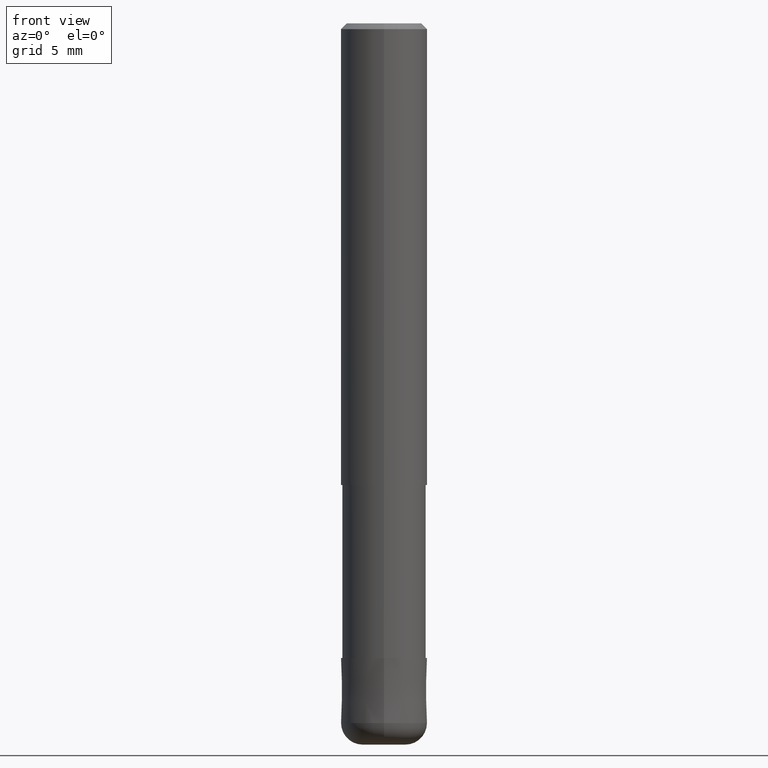
[diagram: clean part render]
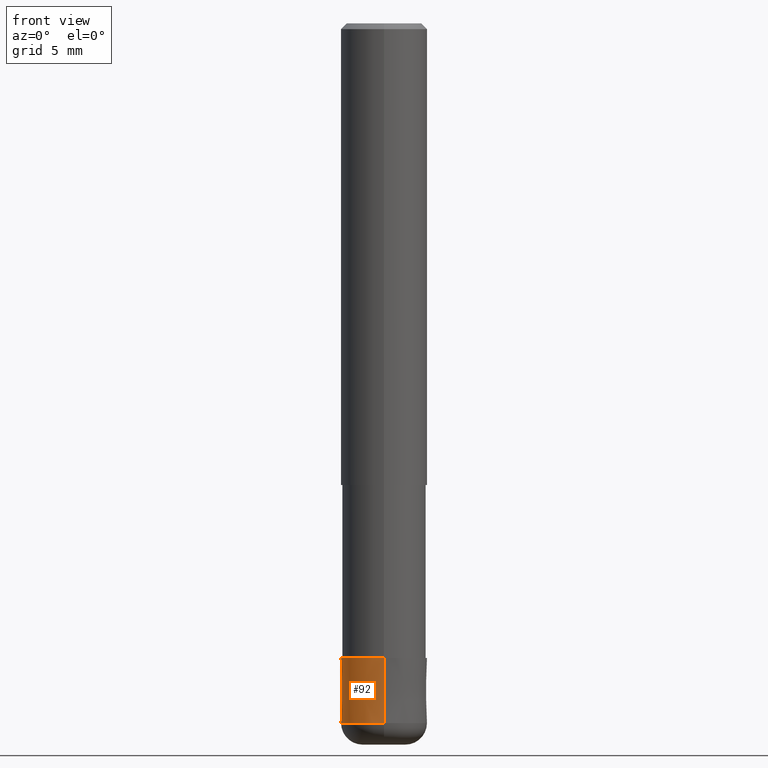
[diagram: same view with one face highlighted and labeled with its STEP entity id]
A machine part, front view. The second image highlights one B-rep face of the part: STEP entity #92.
In plain terms, the highlighted conical surface has half-angle 0.001 deg.
Its self-contained STEP definition (entity closure, byte-faithful):
#92=ADVANCED_FACE('',(#229),#230,.T.);
#102=EDGE_CURVE('',#124,#206,#240,.T.);
#112=EDGE_CURVE('',#156,#206,#251,.T.);
#124=VERTEX_POINT('',#268);
#138=VERTEX_POINT('',#282);
#156=VERTEX_POINT('',#300);
#160=EDGE_CURVE('',#138,#156,#305,.T.);
#198=EDGE_CURVE('',#124,#138,#351,.T.);
#206=VERTEX_POINT('',#359);
#229=FACE_OUTER_BOUND('',#374,.T.);
#230=CONICAL_SURFACE('',#375,2.99995,2.22222222186111E-005);
#240=CIRCLE('',#391,3.0);
#251=LINE('',#404,#405);
#268=CARTESIAN_POINT('',(3.67381906146713E-016,-3.0,-48.5));
#282=CARTESIAN_POINT('',(3.67369660083175E-016,-2.9999,-44.0));
#300=CARTESIAN_POINT('',(0.0,2.9999,-44.0));
#305=CIRCLE('',#466,2.9999);
#351=LINE('',#522,#523);
#359=CARTESIAN_POINT('',(0.0,3.0,-48.5));
#374=EDGE_LOOP('',(#541,#542,#543,#544));
#375=AXIS2_PLACEMENT_3D('',#545,#546,#547);
#391=AXIS2_PLACEMENT_3D('',#553,#554,#555);
#404=CARTESIAN_POINT('',(-3.67375783114944E-016,2.99995,-46.25));
#405=VECTOR('',#571,1.0);
#466=AXIS2_PLACEMENT_3D('',#633,#634,#635);
#522=CARTESIAN_POINT('',(3.67375783114944E-016,-2.99995,-46.25));
#523=VECTOR('',#705,1.0);
#541=ORIENTED_EDGE('',*,*,#112,.T.);
#542=ORIENTED_EDGE('',*,*,#102,.F.);
#543=ORIENTED_EDGE('',*,*,#198,.T.);
#544=ORIENTED_EDGE('',*,*,#160,.T.);
#545=CARTESIAN_POINT('',(0.0,0.0,-46.25));
#546=DIRECTION('',(0.0,-0.0,-1.0));
#547=DIRECTION('',(0.0,1.0,0.0));
#553=CARTESIAN_POINT('',(0.0,0.0,-48.5));
#554=DIRECTION('',(0.0,0.0,-1.0));
#555=DIRECTION('',(0.0,1.0,0.0));
#571=DIRECTION('',(-2.72134745227242E-021,2.22222222167822E-005,-0.999999999753086));
#633=CARTESIAN_POINT('',(0.0,0.0,-44.0));
#634=DIRECTION('',(0.0,0.0,-1.0));
#635=DIRECTION('',(0.0,1.0,0.0));
#705=DIRECTION('',(-2.72134745227242E-021,2.22222222167822E-005,0.999999999753086));